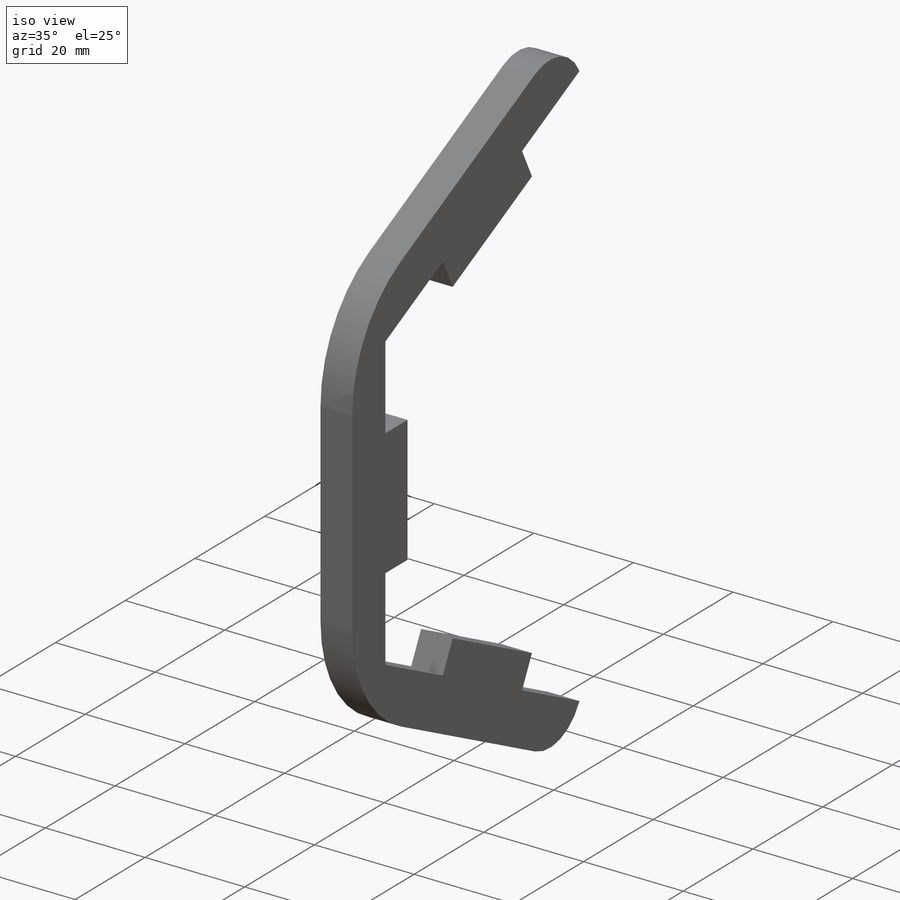
[diagram: iso view]
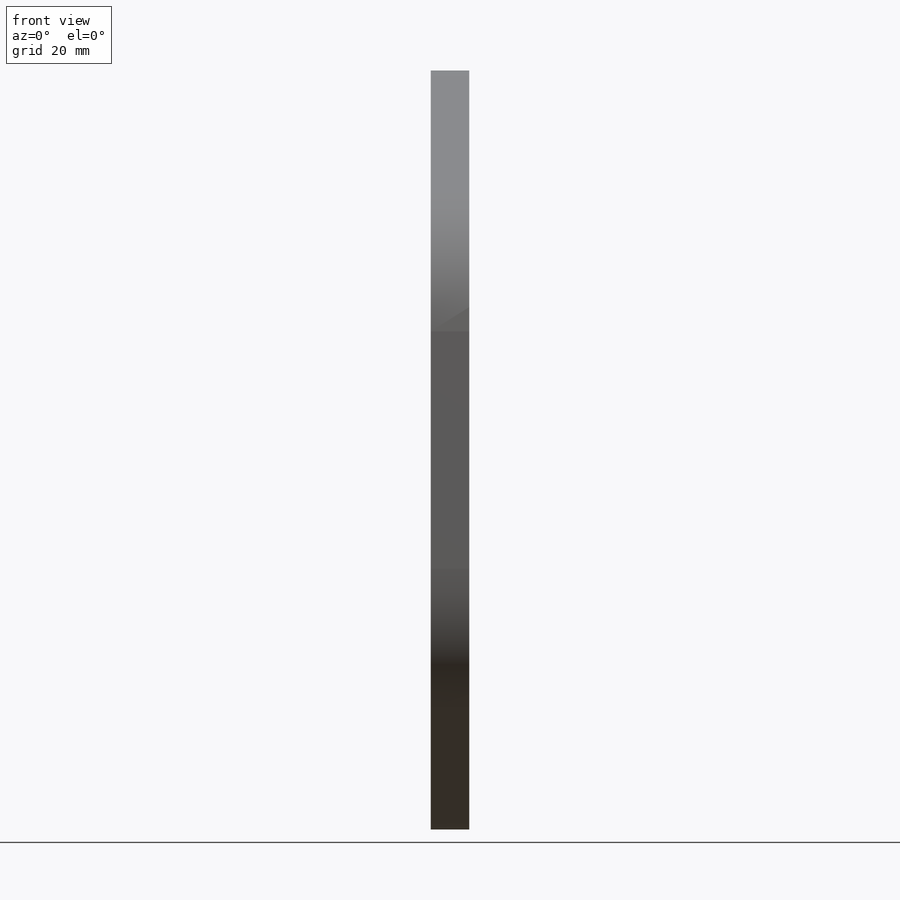
[diagram: front view]
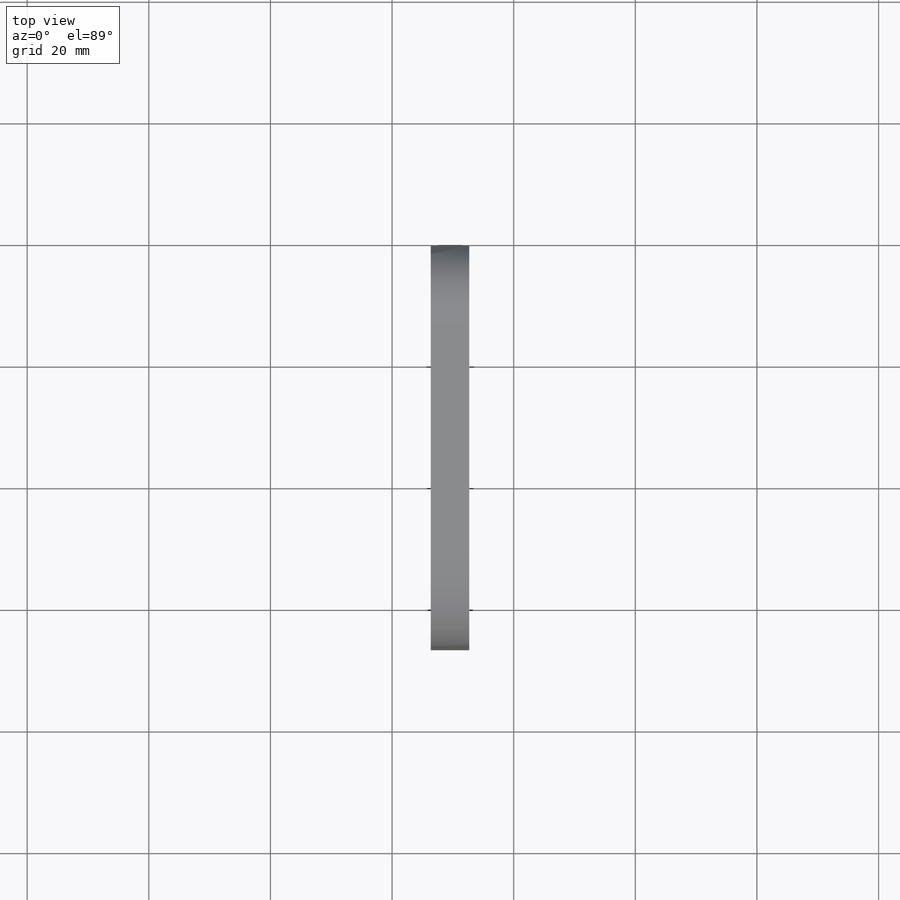
[diagram: top view]
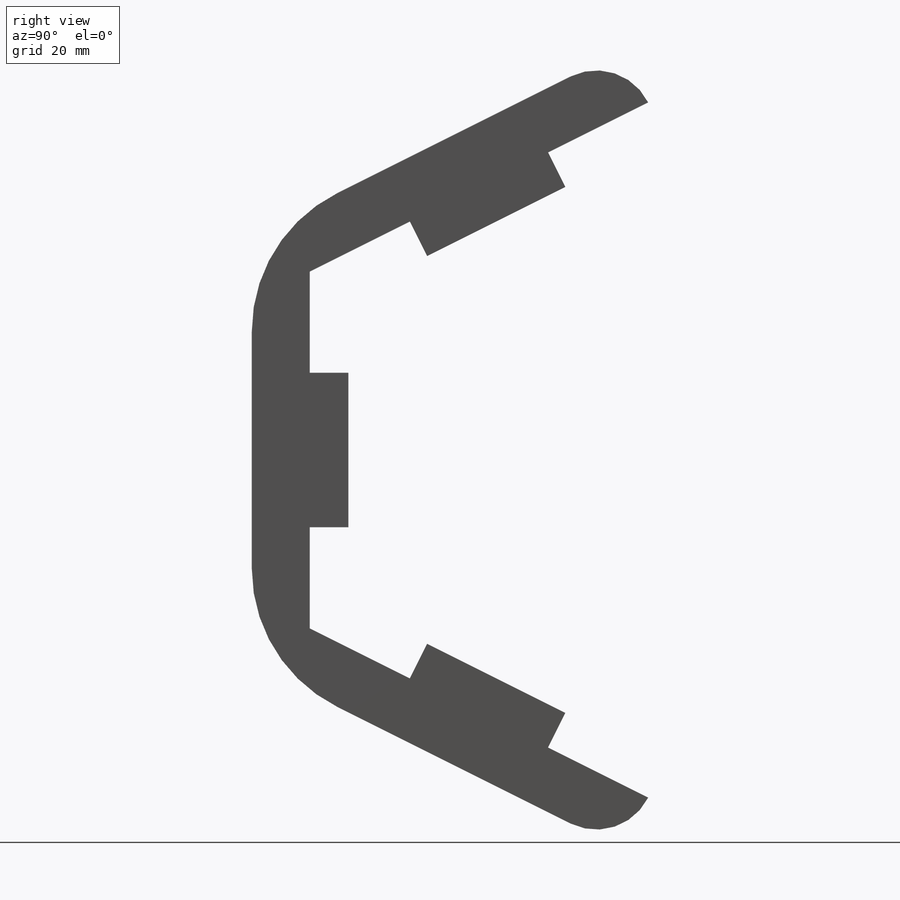
[diagram: right view]
SOLIDWORKS PART (.sldprt)
format: sldprt  version: not decoded by parser v0  size: 568,320 bytes
history: native  units: mm
features: sketch x15, cut_extrude x7, extrude x4, fillet x3, hole x2, material x1, mirror x1 (+13 scaffold rows collapsed)
feature tree (46):
  scaffold x13  (default folders/planes/origin — collapsed)
  material  "Plain Carbon Steel"
  sketch  "Sketch1"  dims[c1.D1=~9.285877mm c1.D3=~12.882042mm c1.D4=15.875mm c1.D5=101.6mm c1.D9=50.8mm c1.D10=67.31mm c1.D11=79.502mm c1.D12=46.736mm c2.D1=38.1mm c2.D2=50.8mm c2.D3=71.755mm c2.D6=254.0mm c2.D7=38.1mm c2.D8=38.1mm]
  extrude  "Boss-Extrude1"  Depth=12.7mm
  hole  "#8 Clearance Hole1"  Diameter=4.4958mm Depth=12.7mm
  sketch  "Sketch3"
  sketch  "Sketch4"  dims[hole-wizard template sketch: 61 standard entries collapsed; hole parameters above]
  sketch  "Sketch5"  dims[D1=~18.903272mm]
  cut_extrude  "Cut-Extrude1"  [1 undecoded]
  sketch  "Sketch7"  dims[D1=38.1mm]
  cut_extrude  "Cut-Extrude2"  [1 undecoded]
  sketch  "Sketch8"  dims[D1=50.8mm]
  cut_extrude  "Cut-Extrude3"  [1 undecoded]
  sketch  "Sketch9"
  extrude  "Boss-Extrude2"  Depth=12.7mm
  sketch  "Sketch10"
  cut_extrude  "Cut-Extrude4"  [1 undecoded]
  sketch  "Sketch11"  dims[D1=0.127mm D2=0.127mm]
  cut_extrude  "Cut-Extrude5"  Depth=3.175mm
  mirror  "Mirror1"
  sketch  "Sketch12"  dims[c1.D2=9.525mm c1.D3=9.525mm c1.D4=25.4mm c1.D5=30.0deg c2.D5=~58.649032mm c3.D5=120.0deg c3.D6=~58.649032mm c4.D6=120.0deg c4.D7=19.05mm c4.D8=19.05mm c4.D1=6.35mm]
  extrude  "Boss-Extrude3"  Depth=6.35mm
  sketch  "Sketch13"  dims[D1=2.54mm]
  cut_extrude  "Cut-Extrude6"  [1 undecoded]
  hole  "3/8 Clearance Hole1"  Diameter=10.0838mm Depth=12.7mm
  sketch  "Sketch15"  dims[D1=31.75mm]
  sketch  "Sketch14"  dims[hole-wizard template sketch: 50 standard entries collapsed; hole parameters above]
  fillet  "Fillet1"  Radius=12.7mm
  sketch  "Sketch16"  dims[c1.D1=~22.851165mm c1.D2=~18.865497mm c2.D1=~23.648299mm c2.D2=~7.170792mm c3.D1=~14.072111mm c3.D2=~18.870788mm c4.D1=6.35mm c4.D2=25.4mm]
  extrude  "Boss-Extrude4"  [1 undecoded]
  sketch  "Sketch17"  dims[D2=6.35mm D1=9.525mm]
  cut_extrude  "Cut-Extrude7"  [1 undecoded]
  fillet  "Fillet2"  Radius=9.525mm
  fillet  "Fillet3"  Radius=25.4mm
decode coverage: 21 of 32 modeling features carry decoded parameters
note: ~ marks probable driven/reference dimensions
note: 7 parameter values undecoded
summary: no parameter record found for 7 features
note: suppression state not decoded; provenance and decode notes live in map.json
